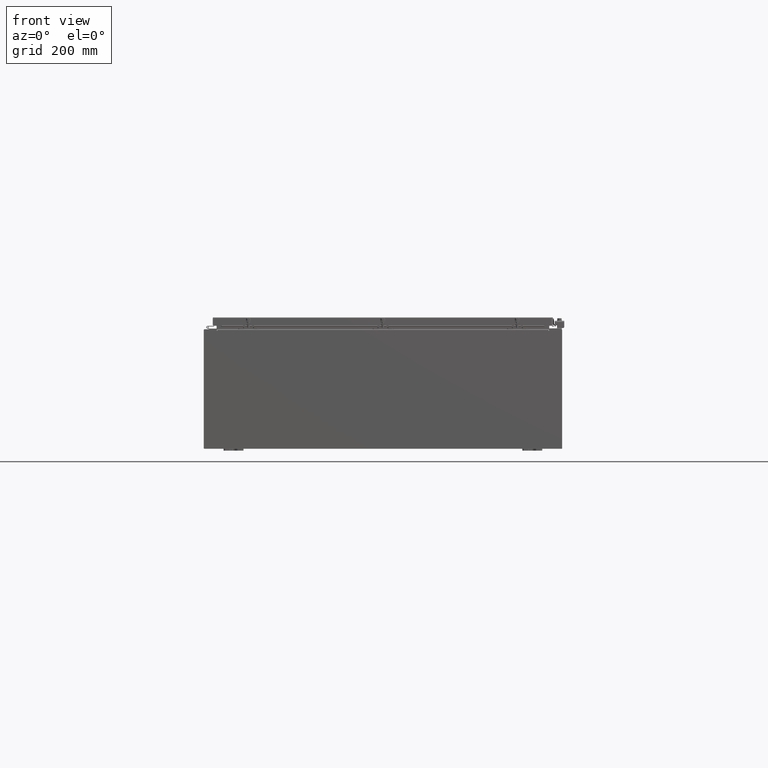
[diagram: clean part render]
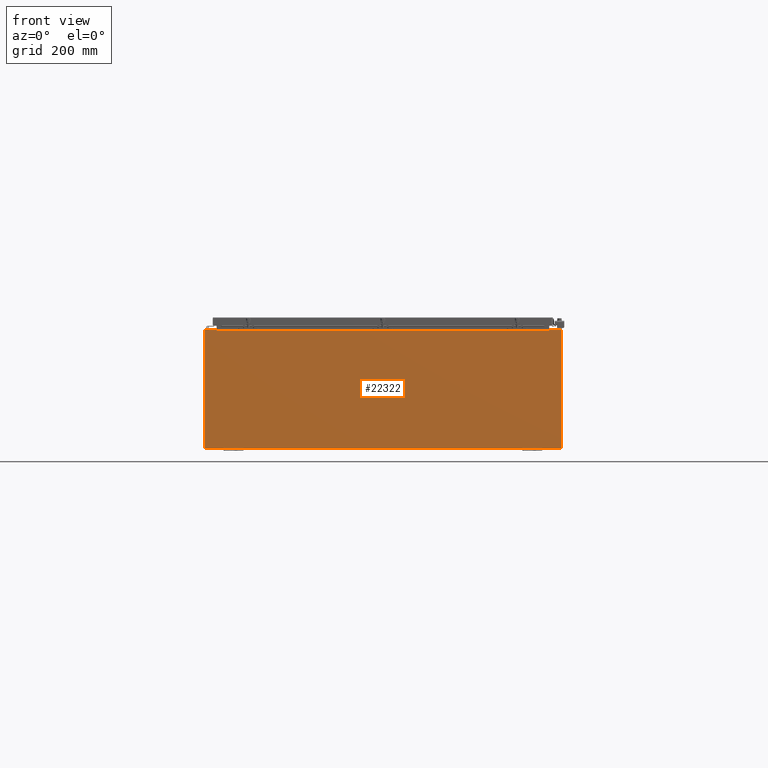
[diagram: same view with one face highlighted and labeled with its STEP entity id]
A machine part, front view. The second image highlights one B-rep face of the part: STEP entity #22322.
In plain terms, the highlighted planar face has unit normal (-0, 1, -0).
Its self-contained STEP definition (entity closure, byte-faithful):
#591 = CARTESIAN_POINT ( 'NONE',  ( -16.65587499999999800, 0.0000000000000000000, 5.874949999999999200 ) ) ;
#936 = ORIENTED_EDGE ( 'NONE', *, *, #62460, .T. ) ;
#1779 = CARTESIAN_POINT ( 'NONE',  ( -17.92529999999999600, 0.0000000000000000000, 5.925299999999999100 ) ) ;
#3333 = EDGE_CURVE ( 'NONE', #7783, #7950, #55218, .T. ) ;
#3536 = VECTOR ( 'NONE', #28083, 39.37007874015748100 ) ;
#4293 = VECTOR ( 'NONE', #34494, 39.37007874015748100 ) ;
#5008 = CARTESIAN_POINT ( 'NONE',  ( 16.63720000000000400, 0.0000000000000000000, 5.912299999999999200 ) ) ;
#5551 = DIRECTION ( 'NONE',  ( 0.0000000000000000000, 0.0000000000000000000, -1.000000000000000000 ) ) ;
#5618 = ORIENTED_EDGE ( 'NONE', *, *, #51466, .F. ) ;
#6342 = EDGE_CURVE ( 'NONE', #52365, #43423, #51113, .T. ) ;
#6638 = LINE ( 'NONE', #10984, #55248 ) ;
#7286 = CARTESIAN_POINT ( 'NONE',  ( 17.92530000000000400, 0.0000000000000000000, 5.925300000000000000 ) ) ;
#7783 = VERTEX_POINT ( 'NONE', #15673 ) ;
#7950 = VERTEX_POINT ( 'NONE', #5008 ) ;
#7981 = VECTOR ( 'NONE', #19329, 39.37007874015748100 ) ;
#9479 = CARTESIAN_POINT ( 'NONE',  ( 17.92530000000000400, 0.0000000000000000000, -5.925300000000000000 ) ) ;
#10628 = CIRCLE ( 'NONE', #34296, 0.01867499999999949400 ) ;
#10984 = CARTESIAN_POINT ( 'NONE',  ( 16.67454999999949500, -0.0000000000000000000, -1.447541957108302900E-012 ) ) ;
#11302 = LINE ( 'NONE', #14175, #61460 ) ;
#11638 = LINE ( 'NONE', #1779, #48829 ) ;
#13392 = VECTOR ( 'NONE', #34644, 39.37007874015748100 ) ;
#14175 = CARTESIAN_POINT ( 'NONE',  ( -17.92529999999999600, 0.0000000000000000000, 5.925299999999999100 ) ) ;
#15673 = CARTESIAN_POINT ( 'NONE',  ( 16.63720000000000400, 0.0000000000000000000, 5.874949999999999200 ) ) ;
#15681 = DIRECTION ( 'NONE',  ( 1.000000000000000000, 0.0000000000000000000, 0.0000000000000000000 ) ) ;
#17656 = ORIENTED_EDGE ( 'NONE', *, *, #3333, .F. ) ;
#17939 = ORIENTED_EDGE ( 'NONE', *, *, #61422, .T. ) ;
#18147 = VERTEX_POINT ( 'NONE', #52515 ) ;
#18445 = DIRECTION ( 'NONE',  ( 0.0000000000000000000, -1.000000000000000000, 0.0000000000000000000 ) ) ;
#18717 = LINE ( 'NONE', #39374, #4293 ) ;
#19329 = DIRECTION ( 'NONE',  ( -1.000000000000000000, -0.0000000000000000000, -0.0000000000000000000 ) ) ;
#20034 = CARTESIAN_POINT ( 'NONE',  ( 17.92530000000000400, 0.0000000000000000000, 5.925300000000000000 ) ) ;
#21347 = DIRECTION ( 'NONE',  ( 1.000000000000000000, 0.0000000000000000000, 3.048036009064577000E-017 ) ) ;
#22072 = LINE ( 'NONE', #33523, #46379 ) ;
#22322 = ADVANCED_FACE ( 'NONE', ( #53551 ), #42608, .F. ) ;
#22365 = LINE ( 'NONE', #33946, #7981 ) ;
#22695 = CARTESIAN_POINT ( 'NONE',  ( -16.67455000000000000, 0.0000000000000000000, 5.874949999999999200 ) ) ;
#24747 = DIRECTION ( 'NONE',  ( -0.0000000000000000000, 1.000000000000000000, -0.0000000000000000000 ) ) ;
#25452 = EDGE_CURVE ( 'NONE', #57690, #7783, #10628, .T. ) ;
#25780 = CARTESIAN_POINT ( 'NONE',  ( 16.67455000000000400, 0.0000000000000000000, 5.874949999999999200 ) ) ;
#26741 = CARTESIAN_POINT ( 'NONE',  ( 16.63720000000000400, 0.0000000000000000000, 0.0000000000000000000 ) ) ;
#27522 = ORIENTED_EDGE ( 'NONE', *, *, #34439, .T. ) ;
#28083 = DIRECTION ( 'NONE',  ( 0.0000000000000000000, 0.0000000000000000000, 1.000000000000000000 ) ) ;
#28605 = CARTESIAN_POINT ( 'NONE',  ( 16.67455000000000700, 0.0000000000000000000, 5.925300000000000000 ) ) ;
#28609 = DIRECTION ( 'NONE',  ( -0.0000000000000000000, -0.0000000000000000000, 1.000000000000000000 ) ) ;
#28721 = DIRECTION ( 'NONE',  ( 1.000000000000000000, 0.0000000000000000000, 3.048036009064577000E-017 ) ) ;
#29139 = EDGE_CURVE ( 'NONE', #58636, #34167, #11638, .T. ) ;
#32055 = CARTESIAN_POINT ( 'NONE',  ( -16.63720000000000000, 3.756290991288361700E-016, 5.912299999999999200 ) ) ;
#32085 = ORIENTED_EDGE ( 'NONE', *, *, #36681, .T. ) ;
#33523 = CARTESIAN_POINT ( 'NONE',  ( -17.92529999999999600, 0.0000000000000000000, 5.925299999999999100 ) ) ;
#33612 = ORIENTED_EDGE ( 'NONE', *, *, #29139, .T. ) ;
#33946 = CARTESIAN_POINT ( 'NONE',  ( -17.92529999999999600, 0.0000000000000000000, -5.925300000000000000 ) ) ;
#34167 = VERTEX_POINT ( 'NONE', #7286 ) ;
#34296 = AXIS2_PLACEMENT_3D ( 'NONE', #53874, #24747, #58800 ) ;
#34439 = EDGE_CURVE ( 'NONE', #62297, #58586, #22365, .T. ) ;
#34494 = DIRECTION ( 'NONE',  ( 0.0000000000000000000, 0.0000000000000000000, 1.000000000000000000 ) ) ;
#34562 = DIRECTION ( 'NONE',  ( -0.0000000000000000000, 1.000000000000000000, -0.0000000000000000000 ) ) ;
#34639 = ORIENTED_EDGE ( 'NONE', *, *, #6342, .F. ) ;
#34644 = DIRECTION ( 'NONE',  ( 0.0000000000000000000, 0.0000000000000000000, -1.000000000000000000 ) ) ;
#34961 = CARTESIAN_POINT ( 'NONE',  ( -16.63720000000000000, -0.0000000000000000000, 5.874949999999999200 ) ) ;
#35783 = AXIS2_PLACEMENT_3D ( 'NONE', #47526, #18445, #52425 ) ;
#36681 = EDGE_CURVE ( 'NONE', #58586, #45643, #22072, .T. ) ;
#37796 = EDGE_LOOP ( 'NONE', ( #5618, #50156, #34639, #17939, #17656, #40722, #59186, #33612, #936, #27522, #32085, #53894 ) ) ;
#38804 = AXIS2_PLACEMENT_3D ( 'NONE', #591, #34562, #5551 ) ;
#38992 = EDGE_CURVE ( 'NONE', #45643, #18147, #11302, .T. ) ;
#39130 = LINE ( 'NONE', #20034, #13392 ) ;
#39374 = CARTESIAN_POINT ( 'NONE',  ( -16.67455000000000000, -0.0000000000000000000, 0.0000000000000000000 ) ) ;
#40722 = ORIENTED_EDGE ( 'NONE', *, *, #25452, .F. ) ;
#40840 = CARTESIAN_POINT ( 'NONE',  ( -17.92529999999999600, 0.0000000000000000000, 5.925299999999999100 ) ) ;
#42330 = VECTOR ( 'NONE', #15681, 39.37007874015748100 ) ;
#42608 = PLANE ( 'NONE',  #35783 ) ;
#43423 = VERTEX_POINT ( 'NONE', #34961 ) ;
#45643 = VERTEX_POINT ( 'NONE', #40840 ) ;
#46379 = VECTOR ( 'NONE', #28609, 39.37007874015748100 ) ;
#47526 = CARTESIAN_POINT ( 'NONE',  ( 0.0000000000000000000, 0.0000000000000000000, 0.0000000000000000000 ) ) ;
#48756 = VERTEX_POINT ( 'NONE', #22695 ) ;
#48829 = VECTOR ( 'NONE', #21347, 39.37007874015748100 ) ;
#49795 = DIRECTION ( 'NONE',  ( -8.681145560799821800E-014, 0.0000000000000000000, -1.000000000000000000 ) ) ;
#50156 = ORIENTED_EDGE ( 'NONE', *, *, #63082, .F. ) ;
#51113 = LINE ( 'NONE', #56266, #61074 ) ;
#51466 = EDGE_CURVE ( 'NONE', #48756, #18147, #18717, .T. ) ;
#52365 = VERTEX_POINT ( 'NONE', #32055 ) ;
#52425 = DIRECTION ( 'NONE',  ( 0.0000000000000000000, -0.0000000000000000000, -1.000000000000000000 ) ) ;
#52482 = CARTESIAN_POINT ( 'NONE',  ( -17.92529999999999600, 0.0000000000000000000, -5.925300000000000000 ) ) ;
#52515 = CARTESIAN_POINT ( 'NONE',  ( -16.67455000000000000, 0.0000000000000000000, 5.925299999999999100 ) ) ;
#53551 = FACE_OUTER_BOUND ( 'NONE', #37796, .T. ) ;
#53874 = CARTESIAN_POINT ( 'NONE',  ( 16.65587500000000500, 0.0000000000000000000, 5.874949999999999200 ) ) ;
#53894 = ORIENTED_EDGE ( 'NONE', *, *, #38992, .T. ) ;
#55218 = LINE ( 'NONE', #26741, #3536 ) ;
#55248 = VECTOR ( 'NONE', #49795, 39.37007874015748100 ) ;
#55490 = DIRECTION ( 'NONE',  ( 0.0000000000000000000, 0.0000000000000000000, -1.000000000000000000 ) ) ;
#56266 = CARTESIAN_POINT ( 'NONE',  ( -16.63720000000000000, -0.0000000000000000000, 0.0000000000000000000 ) ) ;
#57690 = VERTEX_POINT ( 'NONE', #25780 ) ;
#58397 = LINE ( 'NONE', #59478, #42330 ) ;
#58586 = VERTEX_POINT ( 'NONE', #52482 ) ;
#58636 = VERTEX_POINT ( 'NONE', #28605 ) ;
#58800 = DIRECTION ( 'NONE',  ( 0.0000000000000000000, 0.0000000000000000000, -1.000000000000000000 ) ) ;
#59186 = ORIENTED_EDGE ( 'NONE', *, *, #61910, .F. ) ;
#59478 = CARTESIAN_POINT ( 'NONE',  ( -16.63720000000000000, 3.756290991288361700E-016, 5.912299999999999200 ) ) ;
#60475 = CIRCLE ( 'NONE', #38804, 0.01867499999999949400 ) ;
#61074 = VECTOR ( 'NONE', #55490, 39.37007874015748100 ) ;
#61422 = EDGE_CURVE ( 'NONE', #52365, #7950, #58397, .T. ) ;
#61460 = VECTOR ( 'NONE', #28721, 39.37007874015748100 ) ;
#61910 = EDGE_CURVE ( 'NONE', #58636, #57690, #6638, .T. ) ;
#62297 = VERTEX_POINT ( 'NONE', #9479 ) ;
#62460 = EDGE_CURVE ( 'NONE', #34167, #62297, #39130, .T. ) ;
#63082 = EDGE_CURVE ( 'NONE', #43423, #48756, #60475, .T. ) ;